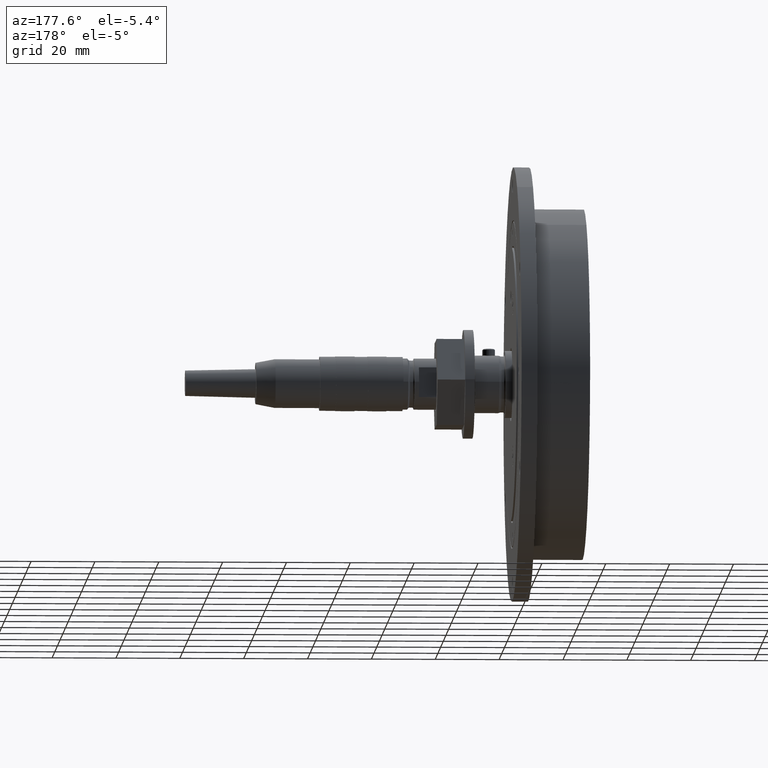
[diagram: clean part render]
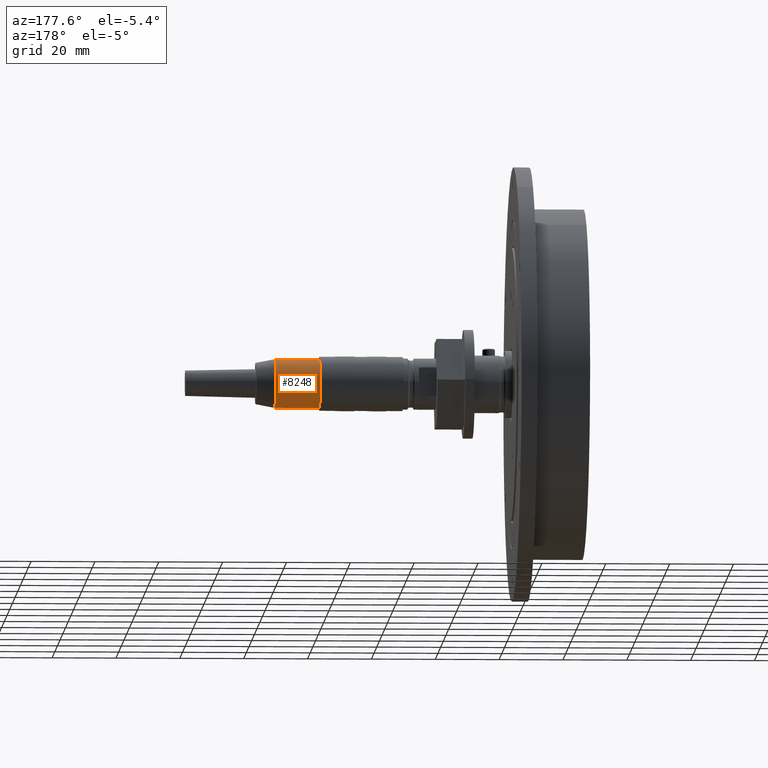
[diagram: same view with one face highlighted and labeled with its STEP entity id]
A machine part, auxiliary view. The second image highlights one B-rep face of the part: STEP entity #8248.
In plain terms, the highlighted cylindrical surface (edge-blend (fillet) strip) has radius 7.65 mm, axis along (-1, 0, 0).
Its self-contained STEP definition (entity closure, byte-faithful):
#8207=CARTESIAN_POINT('',(84.999999999999986,49.999999999999993,0.0));
#8208=DIRECTION('',(1.0,0.0,0.0));
#8209=DIRECTION('',(0.0,1.0,0.0));
#8210=AXIS2_PLACEMENT_3D('',#8207,#8208,#8209);
#8211=CYLINDRICAL_SURFACE('',#8210,7.649999999999999);
#8212=CARTESIAN_POINT('',(91.999999999999972,57.649999999999991,0.0));
#8213=VERTEX_POINT('',#8212);
#8214=CARTESIAN_POINT('',(78.0,57.649999999999991,0.0));
#8215=VERTEX_POINT('',#8214);
#8216=CARTESIAN_POINT('',(91.999999999999972,57.649999999999991,0.0));
#8217=DIRECTION('',(-1.0,0.0,0.0));
#8218=VECTOR('',#8217,13.999999999999972);
#8219=LINE('',#8216,#8218);
#8220=EDGE_CURVE('',#8213,#8215,#8219,.T.);
#8221=ORIENTED_EDGE('',*,*,#8220,.F.);
#8222=CARTESIAN_POINT('',(91.999999999999972,42.349999999999994,-9.368239E-016));
#8223=VERTEX_POINT('',#8222);
#8224=CARTESIAN_POINT('',(91.999999999999972,49.999999999999993,0.0));
#8225=DIRECTION('',(1.0,0.0,0.0));
#8226=DIRECTION('',(0.0,1.0,0.0));
#8227=AXIS2_PLACEMENT_3D('',#8224,#8225,#8226);
#8228=CIRCLE('',#8227,7.649999999999999);
#8229=EDGE_CURVE('',#8223,#8213,#8228,.T.);
#8230=ORIENTED_EDGE('',*,*,#8229,.F.);
#8231=CARTESIAN_POINT('',(78.0,42.349999999999994,-9.368239E-016));
#8232=VERTEX_POINT('',#8231);
#8233=CARTESIAN_POINT('',(91.999999999999972,42.349999999999994,-9.368239E-016));
#8234=DIRECTION('',(-1.0,0.0,0.0));
#8235=VECTOR('',#8234,13.999999999999972);
#8236=LINE('',#8233,#8235);
#8237=EDGE_CURVE('',#8223,#8232,#8236,.T.);
#8238=ORIENTED_EDGE('',*,*,#8237,.T.);
#8239=CARTESIAN_POINT('',(78.0,49.999999999999993,0.0));
#8240=DIRECTION('',(1.0,0.0,0.0));
#8241=DIRECTION('',(0.0,1.0,0.0));
#8242=AXIS2_PLACEMENT_3D('',#8239,#8240,#8241);
#8243=CIRCLE('',#8242,7.649999999999999);
#8244=EDGE_CURVE('',#8232,#8215,#8243,.T.);
#8245=ORIENTED_EDGE('',*,*,#8244,.T.);
#8246=EDGE_LOOP('',(#8221,#8230,#8238,#8245));
#8247=FACE_OUTER_BOUND('',#8246,.T.);
#8248=ADVANCED_FACE('',(#8247),#8211,.T.);